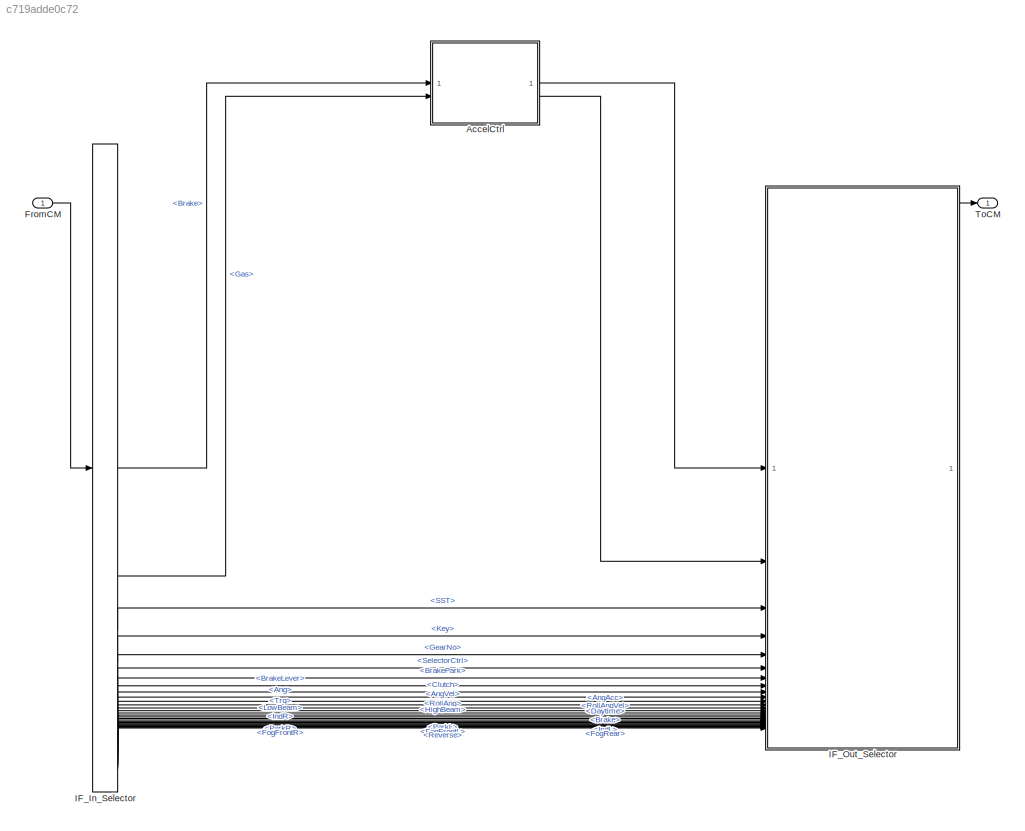
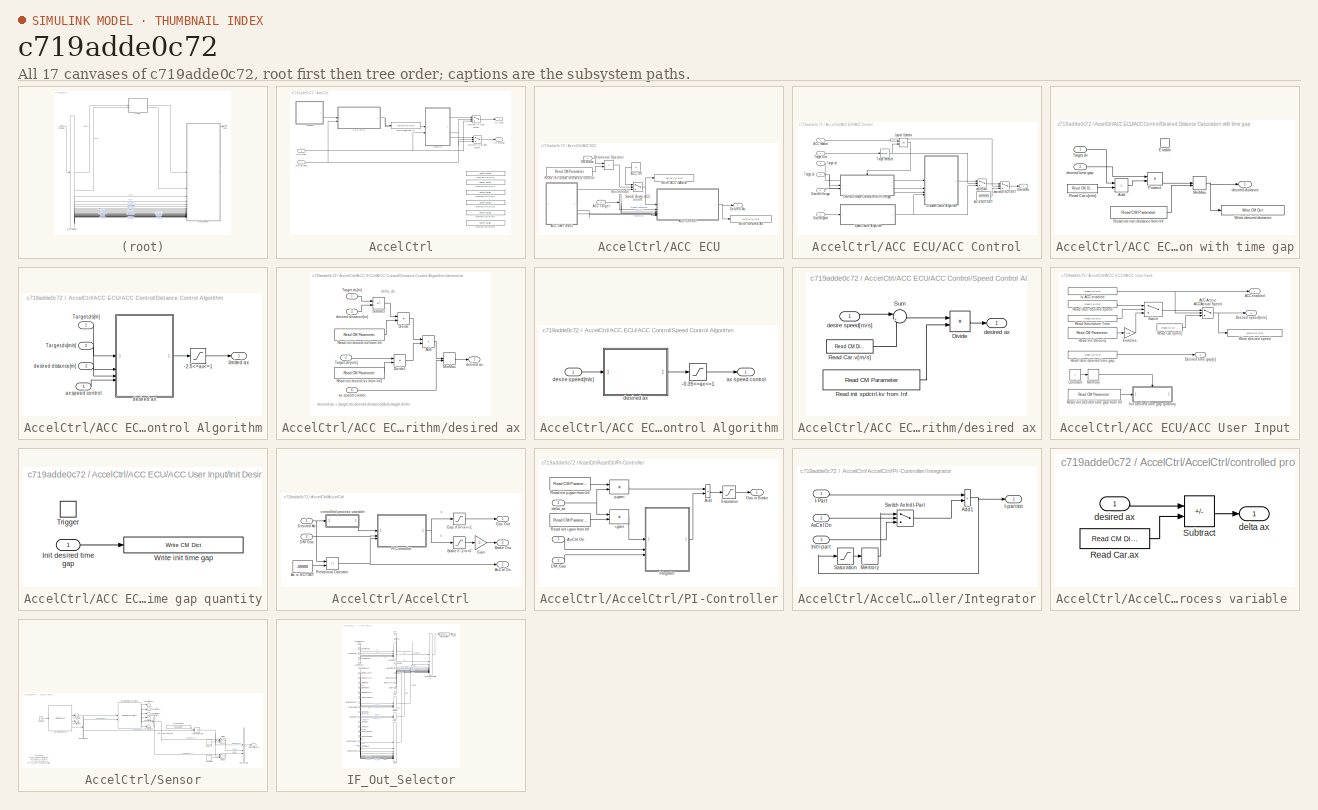
[diagram: thumbnail index - all 17 canvases of the model, root first then tree order]
MODEL slx_c719adde0c72
KIND model
CONFIG AbsTol = auto
CONFIG EnableMultiTasking = off
CONFIG FixedStep = 0.001
CONFIG InitFcn = vehicle = 'Truck'; if ~length(which('cmself')), cmenv; end\nSwitchMobility_ACC_bus
CONFIG MaxStep = auto
CONFIG MinStep = auto
CONFIG PreLoadFcn = vehicle = 'Truck'; if ~length(which('cmself')), cmenv; end\nSwitchMobility_ACC_bus
CONFIG RelTol = 1e-3
CONFIG SampleTimeConstraint = Unconstrained
CONFIG SolverName = ode1
CONFIG StartTime = 0.0
CONFIG StopTime = inf
BLOCK [SubSystem] AccelCtrl
BLOCK [SubSystem] AccelCtrl/ACC ECU
BLOCK [SubSystem] AccelCtrl/ACC ECU/ACC Control
BLOCK [Inport] AccelCtrl/ACC ECU/ACC Control/ACC enabled
BLOCK [Constant] AccelCtrl/ACC ECU/ACC Control/Ax is NOTSET
  Value = -99999
BLOCK [Outport] AccelCtrl/ACC ECU/ACC Control/Desired Ax
  VectorParamsAs1DForOutWhenUnconnected = off
BLOCK [SubSystem] AccelCtrl/ACC ECU/ACC Control/Desired Distance Calculation with time gap
  TreatAsAtomicUnit = on
BLOCK [Sum] AccelCtrl/ACC ECU/ACC Control/Desired Distance Calculation with time gap/Add
  IconShape = rectangular
  OutDataTypeStr = Inherit: Same as first input
  SaturateOnIntegerOverflow = on
BLOCK [EnablePort] AccelCtrl/ACC ECU/ACC Control/Desired Distance Calculation with time gap/Enable
BLOCK [MinMax] AccelCtrl/ACC ECU/ACC Control/Desired Distance Calculation with time gap/MinMax
  Function = max
  InputSameDT = on
  Inputs = 2
  SaturateOnIntegerOverflow = on
BLOCK [Product] AccelCtrl/ACC ECU/ACC Control/Desired Distance Calculation with time gap/Product
  OutDataTypeStr = Inherit: Same as first input
  SaturateOnIntegerOverflow = on
BLOCK [Reference] AccelCtrl/ACC ECU/ACC Control/Desired Distance Calculation with time gap/Read Car.v[m//s]  REF=CarMaker4SL/Read CM Dict
  SourceBlock = CarMaker4SL/Read CM Dict
  SourceProductName = CarMaker4SL
  SourceType = Read CarMaker Dictionary Variable(s)
BLOCK [Reference] AccelCtrl/ACC ECU/ACC Control/Desired Distance Calculation with time gap/Read init min distance from Inf  REF=CarMaker4SL/Read CM Parameter
  SourceBlock = CarMaker4SL/Read CM Parameter
  SourceProductName = CarMaker4SL
  SourceType = Read CarMaker Info File Parameter
BLOCK [Inport] AccelCtrl/ACC ECU/ACC Control/Desired Distance Calculation with time gap/Target.dv
BLOCK [Reference] AccelCtrl/ACC ECU/ACC Control/Desired Distance Calculation with time gap/Write desired distance  REF=CarMaker4SL/Write CM Dict
  SourceBlock = CarMaker4SL/Write CM Dict
  SourceProductName = CarMaker4SL
  SourceType = Write CarMaker Dictionary Variable(s)
BLOCK [Outport] AccelCtrl/ACC ECU/ACC Control/Desired Distance Calculation with time gap/desired distance
  InitialOutput = 0
  VectorParamsAs1DForOutWhenUnconnected = off
BLOCK [Inport] AccelCtrl/ACC ECU/ACC Control/Desired Distance Calculation with time gap/desired time gap
  Port = 2
BLOCK [Inport] AccelCtrl/ACC ECU/ACC Control/Desired speed
  Port = 6
BLOCK [Inport] AccelCtrl/ACC ECU/ACC Control/Desired time gap
  Port = 5
BLOCK [SubSystem] AccelCtrl/ACC ECU/ACC Control/Distance Control Algorithm
  TreatAsAtomicUnit = on
BLOCK [Outport] AccelCtrl/ACC ECU/ACC Control/Distance Control Algorithm/  limited ax
  InitialOutput = 0
  VectorParamsAs1DForOutWhenUnconnected = off
BLOCK [Saturate] AccelCtrl/ACC ECU/ACC Control/Distance Control Algorithm/-2.5<=ax<=1
  LowerLimit = -2.5
  UpperLimit = 1
BLOCK [Inport] AccelCtrl/ACC ECU/ACC Control/Distance Control Algorithm/Target.ds[m]
BLOCK [Inport] AccelCtrl/ACC ECU/ACC Control/Distance Control Algorithm/Target.dv[m//s]
  Port = 2
BLOCK [Inport] AccelCtrl/ACC ECU/ACC Control/Distance Control Algorithm/ax speed control
  Port = 4
BLOCK [SubSystem] AccelCtrl/ACC ECU/ACC Control/Distance Control Algorithm/desired ax
BLOCK [Sum] AccelCtrl/ACC ECU/ACC Control/Distance Control Algorithm/desired ax/Add
  IconShape = rectangular
  OutDataTypeStr = Inherit: Same as first input
  SaturateOnIntegerOverflow = on
BLOCK [Product] AccelCtrl/ACC ECU/ACC Control/Distance Control Algorithm/desired ax/Divide
  Inputs = */
  OutDataTypeStr = Inherit: Same as first input
  SaturateOnIntegerOverflow = on
BLOCK [Product] AccelCtrl/ACC ECU/ACC Control/Distance Control Algorithm/desired ax/Divide1
  Inputs = */
  OutDataTypeStr = Inherit: Same as first input
  SaturateOnIntegerOverflow = on
BLOCK [MinMax] AccelCtrl/ACC ECU/ACC Control/Distance Control Algorithm/desired ax/MinMax
  InputSameDT = on
  Inputs = 2
  SaturateOnIntegerOverflow = on
BLOCK [Reference] AccelCtrl/ACC ECU/ACC Control/Distance Control Algorithm/desired ax/Read init distctrl.kd from Inf  REF=CarMaker4SL/Read CM Parameter
  SourceBlock = CarMaker4SL/Read CM Parameter
  SourceProductName = CarMaker4SL
  SourceType = Read CarMaker Info File Parameter
BLOCK [Reference] AccelCtrl/ACC ECU/ACC Control/Distance Control Algorithm/desired ax/Read init distctrl.kv from Inf1  REF=CarMaker4SL/Read CM Parameter
  SourceBlock = CarMaker4SL/Read CM Parameter
  SourceProductName = CarMaker4SL
  SourceType = Read CarMaker Info File Parameter
BLOCK [Sum] AccelCtrl/ACC ECU/ACC Control/Distance Control Algorithm/desired ax/Subtract
  IconShape = rectangular
  Inputs = +-
  OutDataTypeStr = Inherit: Same as first input
  SaturateOnIntegerOverflow = on
BLOCK [Inport] AccelCtrl/ACC ECU/ACC Control/Distance Control Algorithm/desired ax/Target.ds[m]
BLOCK [Inport] AccelCtrl/ACC ECU/ACC Control/Distance Control Algorithm/desired ax/Target.dv[m//s]
  Port = 2
BLOCK [Inport] AccelCtrl/ACC ECU/ACC Control/Distance Control Algorithm/desired ax/ax speed control
  Port = 4
BLOCK [Outport] AccelCtrl/ACC ECU/ACC Control/Distance Control Algorithm/desired ax/desired ax
  VectorParamsAs1DForOutWhenUnconnected = off
BLOCK [Inport] AccelCtrl/ACC ECU/ACC Control/Distance Control Algorithm/desired ax/desired distance[m]
  Port = 3
BLOCK [Inport] AccelCtrl/ACC ECU/ACC Control/Distance Control Algorithm/desired distance[m]
  Port = 3
BLOCK [Logic] AccelCtrl/ACC ECU/ACC Control/Logical Operator
  AllPortsSameDT = off
BLOCK [SubSystem] AccelCtrl/ACC ECU/ACC Control/Speed Control Algorithm
  TreatAsAtomicUnit = on
BLOCK [Saturate] AccelCtrl/ACC ECU/ACC Control/Speed Control Algorithm/-0.35<=ax<=1
  LowerLimit = -0.35
  UpperLimit = 1
BLOCK [Outport] AccelCtrl/ACC ECU/ACC Control/Speed Control Algorithm/ax speed control
  InitialOutput = 0
  VectorParamsAs1DForOutWhenUnconnected = off
BLOCK [Inport] AccelCtrl/ACC ECU/ACC Control/Speed Control Algorithm/desire speed[m//s]
BLOCK [SubSystem] AccelCtrl/ACC ECU/ACC Control/Speed Control Algorithm/desired ax
BLOCK [Product] AccelCtrl/ACC ECU/ACC Control/Speed Control Algorithm/desired ax/Divide
  Inputs = */
  OutDataTypeStr = Inherit: Same as first input
  SaturateOnIntegerOverflow = on
BLOCK [Reference] AccelCtrl/ACC ECU/ACC Control/Speed Control Algorithm/desired ax/Read Car.v[m//s]  REF=CarMaker4SL/Read CM Dict
  SourceBlock = CarMaker4SL/Read CM Dict
  SourceProductName = CarMaker4SL
  SourceType = Read CarMaker Dictionary Variable(s)
BLOCK [Reference] AccelCtrl/ACC ECU/ACC Control/Speed Control Algorithm/desired ax/Read init spdctrl.kv from Inf  REF=CarMaker4SL/Read CM Parameter
  SourceBlock = CarMaker4SL/Read CM Parameter
  SourceProductName = CarMaker4SL
  SourceType = Read CarMaker Info File Parameter
BLOCK [Sum] AccelCtrl/ACC ECU/ACC Control/Speed Control Algorithm/desired ax/Sum
  Inputs = |+-
  OutDataTypeStr = Inherit: Same as first input
  SaturateOnIntegerOverflow = on
BLOCK [Inport] AccelCtrl/ACC ECU/ACC Control/Speed Control Algorithm/desired ax/desire speed[m//s]
BLOCK [Outport] AccelCtrl/ACC ECU/ACC Control/Speed Control Algorithm/desired ax/desired ax
  VectorParamsAs1DForOutWhenUnconnected = off
BLOCK [Inport] AccelCtrl/ACC ECU/ACC Control/Target Dtct
  Port = 2
BLOCK [Reference] AccelCtrl/ACC ECU/ACC Control/Target detected  REF=simulink/Logic and Bit
Operations/Compare
To Zero
  SourceBlock = simulink/Logic and Bit\nOperations/Compare\nTo Zero
  SourceType = Compare To Zero
BLOCK [Inport] AccelCtrl/ACC ECU/ACC Control/Target.ds
  Port = 3
BLOCK [Inport] AccelCtrl/ACC ECU/ACC Control/Target.dv
  Port = 4
BLOCK [Switch] AccelCtrl/ACC ECU/ACC Control/desired Ax
  InputSameDT = off
  NameLocation = top
  Threshold = 1
BLOCK [Switch] AccelCtrl/ACC ECU/ACC Control/desired or NOTSET
  InputSameDT = off
  NameLocation = top
  Threshold = 1
BLOCK [Constant] AccelCtrl/ACC ECU/ACC Off
  NameLocation = top
  Value = 0
BLOCK [Inport] AccelCtrl/ACC ECU/ACC Target
BLOCK [SubSystem] AccelCtrl/ACC ECU/ACC User Input
BLOCK [Switch] AccelCtrl/ACC ECU/ACC User Input/ACC Active ACC//Actual Speed
  InputSameDT = off
  NameLocation = top
  Threshold = 1
BLOCK [Outport] AccelCtrl/ACC ECU/ACC User Input/ACC enabled
  VectorParamsAs1DForOutWhenUnconnected = off
BLOCK [Constant] AccelCtrl/ACC ECU/ACC User Input/Constant
BLOCK [Outport] AccelCtrl/ACC ECU/ACC User Input/Desired speed[m//s]
  Port = 3
  VectorParamsAs1DForOutWhenUnconnected = off
BLOCK [Outport] AccelCtrl/ACC ECU/ACC User Input/Desired time gap[s]
  Port = 2
  VectorParamsAs1DForOutWhenUnconnected = off
BLOCK [SubSystem] AccelCtrl/ACC ECU/ACC User Input/Init Desired time gap quantity
  TreatAsAtomicUnit = on
BLOCK [Inport] AccelCtrl/ACC ECU/ACC User Input/Init Desired time gap quantity/Init desired time gap 
BLOCK [TriggerPort] AccelCtrl/ACC ECU/ACC User Input/Init Desired time gap quantity/Trigger
  StatesWhenEnabling = held
  VariantControl = Variant
BLOCK [Reference] AccelCtrl/ACC ECU/ACC User Input/Init Desired time gap quantity/Write init time gap  REF=CarMaker4SL/Write CM Dict
  SourceBlock = CarMaker4SL/Write CM Dict
  SourceProductName = CarMaker4SL
  SourceType = Write CarMaker Dictionary Variable(s)
BLOCK [Reference] AccelCtrl/ACC ECU/ACC User Input/Is ACC enabled  REF=CarMaker4SL/Read CM Dict
  SourceBlock = CarMaker4SL/Read CM Dict
  SourceProductName = CarMaker4SL
  SourceType = Read CarMaker Dictionary Variable(s)
BLOCK [Memory] AccelCtrl/ACC ECU/ACC User Input/Memory
BLOCK [Reference] AccelCtrl/ACC ECU/ACC User Input/Read Car.v[m//s]  REF=CarMaker4SL/Read CM Dict
  SourceBlock = CarMaker4SL/Read CM Dict
  SourceProductName = CarMaker4SL
  SourceType = Read CarMaker Dictionary Variable(s)
BLOCK [Reference] AccelCtrl/ACC ECU/ACC User Input/Read Init Velocity  REF=CarMaker4SL/Read CM Parameter
  SourceBlock = CarMaker4SL/Read CM Parameter
  SourceProductName = CarMaker4SL
  SourceType = Read CarMaker Info File Parameter
BLOCK [Reference] AccelCtrl/ACC ECU/ACC User Input/Read Simulation Time  REF=CarMaker4SL/Read CM Dict
  SourceBlock = CarMaker4SL/Read CM Dict
  SourceProductName = CarMaker4SL
  SourceType = Read CarMaker Dictionary Variable(s)
BLOCK [Reference] AccelCtrl/ACC ECU/ACC User Input/Read User desired speed  REF=CarMaker4SL/Read CM Dict
  SourceBlock = CarMaker4SL/Read CM Dict
  SourceProductName = CarMaker4SL
  SourceType = Read CarMaker Dictionary Variable(s)
BLOCK [Reference] AccelCtrl/ACC ECU/ACC User Input/Read User desired time gap  REF=CarMaker4SL/Read CM Dict
  SourceBlock = CarMaker4SL/Read CM Dict
  SourceProductName = CarMaker4SL
  SourceType = Read CarMaker Dictionary Variable(s)
BLOCK [Reference] AccelCtrl/ACC ECU/ACC User Input/Read init desired time gap from Inf  REF=CarMaker4SL/Read CM Parameter
  SourceBlock = CarMaker4SL/Read CM Parameter
  SourceProductName = CarMaker4SL
  SourceType = Read CarMaker Info File Parameter
BLOCK [Switch] AccelCtrl/ACC ECU/ACC User Input/Switch
  Criteria = u2 > Threshold
  InputSameDT = off
  SaturateOnIntegerOverflow = off
BLOCK [Reference] AccelCtrl/ACC ECU/ACC User Input/Write desired speed  REF=CarMaker4SL/Write CM Dict
  SourceBlock = CarMaker4SL/Write CM Dict
  SourceProductName = CarMaker4SL
  SourceType = Write CarMaker Dictionary Variable(s)
BLOCK [Gain] AccelCtrl/ACC ECU/ACC User Input/kmh2ms
  Gain = 0.28
BLOCK [BusSelector] AccelCtrl/ACC ECU/Bus Selector
  OutputSignals = target detected,ds[m],dv[m/s]
BLOCK [Inport] AccelCtrl/ACC ECU/DM Brake
  Port = 2
BLOCK [Outport] AccelCtrl/ACC ECU/Desired Ax
  VectorParamsAs1DForOutWhenUnconnected = off
BLOCK [Reference] AccelCtrl/ACC ECU/Read init brake threshold from Inf  REF=CarMaker4SL/Read CM Parameter
  SourceBlock = CarMaker4SL/Read CM Parameter
  SourceProductName = CarMaker4SL
  SourceType = Read CarMaker Info File Parameter
BLOCK [RelationalOperator] AccelCtrl/ACC ECU/Relational Operator
  InputSameDT = off
  Operator = >
BLOCK [Switch] AccelCtrl/ACC ECU/Switch Brake ACC on//off
  InputSameDT = off
  NameLocation = top
  Threshold = 1
BLOCK [Reference] AccelCtrl/ACC ECU/Write ACC IsActive  REF=CarMaker4SL/Write CM Dict
  SourceBlock = CarMaker4SL/Write CM Dict
  SourceProductName = CarMaker4SL
  SourceType = Write CarMaker Dictionary Variable(s)
BLOCK [Reference] AccelCtrl/ACC ECU/Write desired Ax  REF=CarMaker4SL/Write CM Dict
  SourceBlock = CarMaker4SL/Write CM Dict
  SourceProductName = CarMaker4SL
  SourceType = Write CarMaker Dictionary Variable(s)
BLOCK [SubSystem] AccelCtrl/AccelCtrl
BLOCK [Constant] AccelCtrl/AccelCtrl/Ax is NOTSET
  Value = -99999
BLOCK [Outport] AccelCtrl/AccelCtrl/AxCtrl On
  Port = 2
  VectorParamsAs1DForOutWhenUnconnected = off
BLOCK [Outport] AccelCtrl/AccelCtrl/Brake Out
  Port = 3
  VectorParamsAs1DForOutWhenUnconnected = off
BLOCK [Saturate] AccelCtrl/AccelCtrl/Brake if -1<x<0
  LowerLimit = -1
  UpperLimit = 0
BLOCK [Inport] AccelCtrl/AccelCtrl/DM Gas
  Port = 2
BLOCK [Inport] AccelCtrl/AccelCtrl/Desired Ax
BLOCK [Gain] AccelCtrl/AccelCtrl/Gain
  Gain = -1
  OutDataTypeStr = Inherit: Same as input
  ParamDataTypeStr = Inherit: Same as input
  SaturateOnIntegerOverflow = on
BLOCK [Saturate] AccelCtrl/AccelCtrl/Gas  if 0<=x<=1
  LowerLimit = 0
  UpperLimit = 1
BLOCK [Outport] AccelCtrl/AccelCtrl/Gas Out
  VectorParamsAs1DForOutWhenUnconnected = off
BLOCK [SubSystem] AccelCtrl/AccelCtrl/PI-Controller
BLOCK [Sum] AccelCtrl/AccelCtrl/PI-Controller/Add
  IconShape = rectangular
  OutDataTypeStr = Inherit: Same as first input
  SaturateOnIntegerOverflow = on
BLOCK [Inport] AccelCtrl/AccelCtrl/PI-Controller/AxCtrl On
  Port = 3
BLOCK [Inport] AccelCtrl/AccelCtrl/PI-Controller/DM_Gas
  Port = 2
BLOCK [Outport] AccelCtrl/AccelCtrl/PI-Controller/Gas or Brake
  VectorParamsAs1DForOutWhenUnconnected = off
BLOCK [SubSystem] AccelCtrl/AccelCtrl/PI-Controller/Integrator
BLOCK [Sum] AccelCtrl/AccelCtrl/PI-Controller/Integrator/Add1
  IconShape = rectangular
  OutDataTypeStr = Inherit: Same as first input
  SaturateOnIntegerOverflow = on
BLOCK [Inport] AccelCtrl/AccelCtrl/PI-Controller/Integrator/AxCtrl On
  Port = 2
BLOCK [Inport] AccelCtrl/AccelCtrl/PI-Controller/Integrator/I-Part
BLOCK [Outport] AccelCtrl/AccelCtrl/PI-Controller/Integrator/I-part tot 
  VectorParamsAs1DForOutWhenUnconnected = off
BLOCK [Inport] AccelCtrl/AccelCtrl/PI-Controller/Integrator/Init I-part
  Port = 3
BLOCK [Memory] AccelCtrl/AccelCtrl/PI-Controller/Integrator/Memory
BLOCK [Saturate] AccelCtrl/AccelCtrl/PI-Controller/Integrator/Saturation
  LowerLimit = -1
  UpperLimit = 1
BLOCK [Switch] AccelCtrl/AccelCtrl/PI-Controller/Integrator/Switch Ax Init I-Part
  InputSameDT = off
  NameLocation = top
  Threshold = 1
BLOCK [Reference] AccelCtrl/AccelCtrl/PI-Controller/Read init i-gain from Inf  REF=CarMaker4SL/Read CM Parameter
  SourceBlock = CarMaker4SL/Read CM Parameter
  SourceProductName = CarMaker4SL
  SourceType = Read CarMaker Info File Parameter
BLOCK [Reference] AccelCtrl/AccelCtrl/PI-Controller/Read init p-gain from Inf  REF=CarMaker4SL/Read CM Parameter
  SourceBlock = CarMaker4SL/Read CM Parameter
  SourceProductName = CarMaker4SL
  SourceType = Read CarMaker Info File Parameter
BLOCK [Saturate] AccelCtrl/AccelCtrl/PI-Controller/Saturation
  LowerLimit = -1
  UpperLimit = 1
BLOCK [Inport] AccelCtrl/AccelCtrl/PI-Controller/delta_ax
BLOCK [Product] AccelCtrl/AccelCtrl/PI-Controller/i-gain
  OutDataTypeStr = Inherit: Same as first input
  SaturateOnIntegerOverflow = on
BLOCK [Product] AccelCtrl/AccelCtrl/PI-Controller/p-gain
  OutDataTypeStr = Inherit: Same as first input
  SaturateOnIntegerOverflow = on
BLOCK [RelationalOperator] AccelCtrl/AccelCtrl/Relational Operator
  InputSameDT = off
  Operator = ~=
BLOCK [SubSystem] AccelCtrl/AccelCtrl/controlled process variable 
BLOCK [Reference] AccelCtrl/AccelCtrl/controlled process variable /Read Car.ax  REF=CarMaker4SL/Read CM Dict
  SourceBlock = CarMaker4SL/Read CM Dict
  SourceProductName = CarMaker4SL
  SourceType = Read CarMaker Dictionary Variable(s)
BLOCK [Sum] AccelCtrl/AccelCtrl/controlled process variable /Subtract
  IconShape = rectangular
  Inputs = +-
  SaturateOnIntegerOverflow = on
BLOCK [Outport] AccelCtrl/AccelCtrl/controlled process variable /delta ax
  VectorParamsAs1DForOutWhenUnconnected = off
BLOCK [Inport] AccelCtrl/AccelCtrl/controlled process variable /desired ax
BLOCK [Inport] AccelCtrl/DM Brake
BLOCK [Inport] AccelCtrl/DM Gas
  Port = 2
BLOCK [Reference] AccelCtrl/Define CM Dict  REF=CarMaker4SL/Define CM Dict
  SourceBlock = CarMaker4SL/Define CM Dict
  SourceProductName = CarMaker4SL
  SourceType = Define CarMaker Dictionary Variable
BLOCK [Reference] AccelCtrl/Define CM Dict1  REF=CarMaker4SL/Define CM Dict
  SourceBlock = CarMaker4SL/Define CM Dict
  SourceProductName = CarMaker4SL
  SourceType = Define CarMaker Dictionary Variable
BLOCK [Reference] AccelCtrl/Define CM Dict2  REF=CarMaker4SL/Define CM Dict
  SourceBlock = CarMaker4SL/Define CM Dict
  SourceProductName = CarMaker4SL
  SourceType = Define CarMaker Dictionary Variable
BLOCK [Reference] AccelCtrl/Define CM Dict3  REF=CarMaker4SL/Define CM Dict
  SourceBlock = CarMaker4SL/Define CM Dict
  SourceProductName = CarMaker4SL
  SourceType = Define CarMaker Dictionary Variable
BLOCK [Reference] AccelCtrl/Define CM Dict4  REF=CarMaker4SL/Define CM Dict
  SourceBlock = CarMaker4SL/Define CM Dict
  SourceProductName = CarMaker4SL
  SourceType = Define CarMaker Dictionary Variable
BLOCK [Reference] AccelCtrl/Define CM Dict5  REF=CarMaker4SL/Define CM Dict
  SourceBlock = CarMaker4SL/Define CM Dict
  SourceProductName = CarMaker4SL
  SourceType = Define CarMaker Dictionary Variable
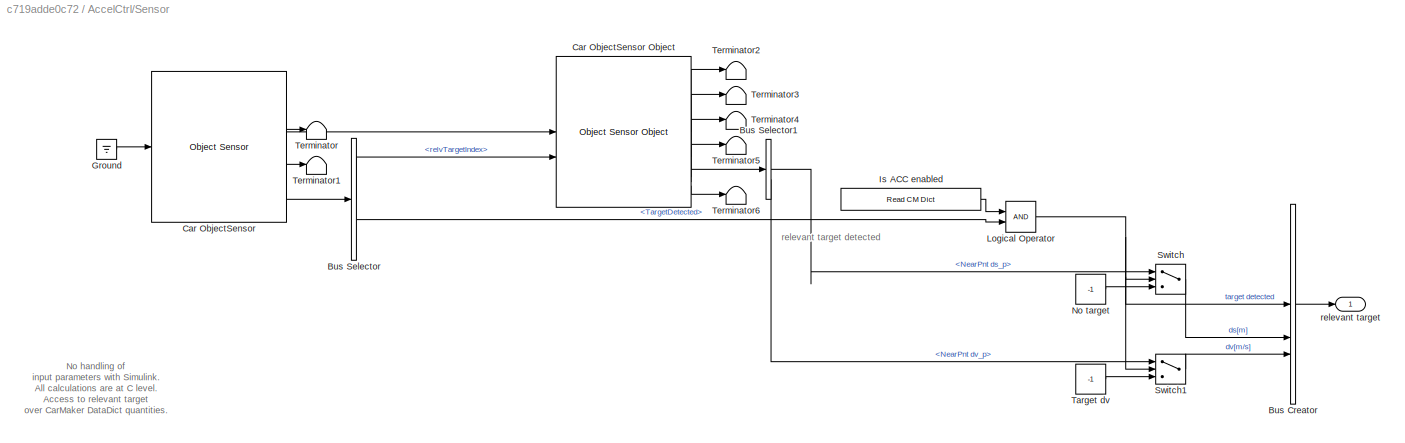
BLOCK [SubSystem] AccelCtrl/Sensor
BLOCK [BusCreator] AccelCtrl/Sensor/Bus Creator
  DisplayOption = bar
  InheritFromInputs = on
  Inputs = 3
BLOCK [BusSelector] AccelCtrl/Sensor/Bus Selector
  OutputSignals = relvTargetIndex,TargetDetected
BLOCK [BusSelector] AccelCtrl/Sensor/Bus Selector1
  OutputSignals = NearPnt ds_p,NearPnt dv_p
BLOCK [Reference] AccelCtrl/Sensor/Car ObjectSensor  REF=CarMaker4SL/Sensors/Object Sensor
  SourceBlock = CarMaker4SL/Sensors/Object Sensor
  SourceProductName = CarMaker4SL
  SourceType = Object Sensor
BLOCK [Reference] AccelCtrl/Sensor/Car ObjectSensor Object  REF=CarMaker4SL/Sensors/Object Sensor Object
  SourceBlock = CarMaker4SL/Sensors/Object Sensor Object
  SourceProductName = CarMaker4SL
  SourceType = Object Sensor Object
BLOCK [Ground] AccelCtrl/Sensor/Ground
BLOCK [Reference] AccelCtrl/Sensor/Is ACC enabled  REF=CarMaker4SL/Read CM Dict
  SourceBlock = CarMaker4SL/Read CM Dict
  SourceProductName = CarMaker4SL
  SourceType = Read CarMaker Dictionary Variable(s)
BLOCK [Logic] AccelCtrl/Sensor/Logical Operator
  AllPortsSameDT = off
BLOCK [Constant] AccelCtrl/Sensor/No target
  Value = -1
BLOCK [Switch] AccelCtrl/Sensor/Switch
  Criteria = u2 > Threshold
  InputSameDT = off
BLOCK [Switch] AccelCtrl/Sensor/Switch1
  Criteria = u2 > Threshold
  InputSameDT = off
BLOCK [Constant] AccelCtrl/Sensor/Target dv
  Value = -1
BLOCK [Terminator] AccelCtrl/Sensor/Terminator
BLOCK [Terminator] AccelCtrl/Sensor/Terminator1
BLOCK [Terminator] AccelCtrl/Sensor/Terminator2
BLOCK [Terminator] AccelCtrl/Sensor/Terminator3
BLOCK [Terminator] AccelCtrl/Sensor/Terminator4
BLOCK [Terminator] AccelCtrl/Sensor/Terminator5
BLOCK [Terminator] AccelCtrl/Sensor/Terminator6
BLOCK [Outport] AccelCtrl/Sensor/relevant target
  VectorParamsAs1DForOutWhenUnconnected = off
BLOCK [Switch] AccelCtrl/Switch Ax Brake on//off
  InputSameDT = off
  NameLocation = top
  Threshold = 1
BLOCK [Switch] AccelCtrl/Switch Ax Gas on//off
  InputSameDT = off
  NameLocation = top
  Threshold = 1
BLOCK [Outport] AccelCtrl/VC Brake
  VectorParamsAs1DForOutWhenUnconnected = off
BLOCK [Outport] AccelCtrl/VC Gas
  Port = 2
  VectorParamsAs1DForOutWhenUnconnected = off
BLOCK [Reference] AccelCtrl/Write desired Ax  REF=CarMaker4SL/Write CM Dict
  SourceBlock = CarMaker4SL/Write CM Dict
  SourceProductName = CarMaker4SL
  SourceType = Write CarMaker Dictionary Variable(s)
BLOCK [Inport] FromCM
  OutDataTypeStr = Bus: cmVehicleControlIn
BLOCK [BusSelector] IF_In_Selector
  OutputSignals = Brake,Gas,SST,Key,GearNo,SelectorCtrl,BrakePark,BrakeLever,Clutch,Steering.Ang,Steering.AngVel,Steering.AngAcc,Steering.Trq,Rider.RollAng,Rider.RollAngVel,Lights.LowBeam,Lights.HighBeam,Lights.Daytime,Lights.ParkL,Lights.ParkR,Lights.IndL,Lights.IndR,Lights.FogFrontL,Lights.FogFrontR,Lights.FogRear,Lights.Brake,Lights.Reverse
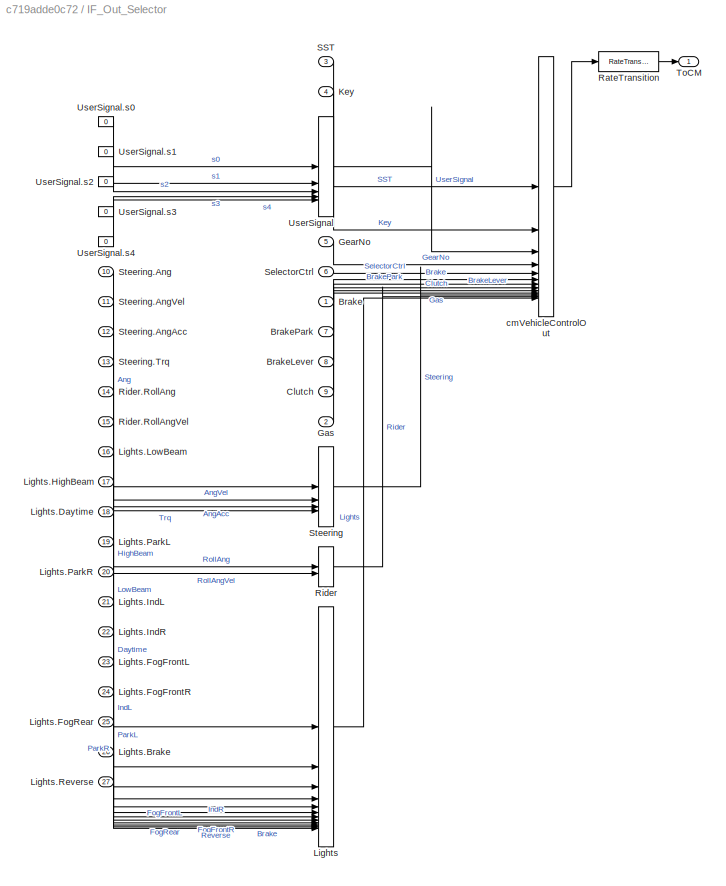
BLOCK [SubSystem] IF_Out_Selector
  OpenFcn = cmSignalSelect('SignalSelection_CB',gcb)
  UserDataPersistent = on
BLOCK [Inport] IF_Out_Selector/Brake
BLOCK [Inport] IF_Out_Selector/BrakeLever
  Port = 8
BLOCK [Inport] IF_Out_Selector/BrakePark
  Port = 7
BLOCK [Inport] IF_Out_Selector/Clutch
  Port = 9
BLOCK [Inport] IF_Out_Selector/Gas
  Port = 2
BLOCK [Inport] IF_Out_Selector/GearNo
  Port = 5
BLOCK [Inport] IF_Out_Selector/Key
  Port = 4
BLOCK [BusCreator] IF_Out_Selector/Lights
  InheritFromInputs = on
  Inputs = 12
BLOCK [Inport] IF_Out_Selector/Lights.Brake
  Port = 26
BLOCK [Inport] IF_Out_Selector/Lights.Daytime
  Port = 18
BLOCK [Inport] IF_Out_Selector/Lights.FogFrontL
  Port = 23
BLOCK [Inport] IF_Out_Selector/Lights.FogFrontR
  Port = 24
BLOCK [Inport] IF_Out_Selector/Lights.FogRear
  Port = 25
BLOCK [Inport] IF_Out_Selector/Lights.HighBeam
  Port = 17
BLOCK [Inport] IF_Out_Selector/Lights.IndL
  Port = 21
BLOCK [Inport] IF_Out_Selector/Lights.IndR
  Port = 22
BLOCK [Inport] IF_Out_Selector/Lights.LowBeam
  Port = 16
BLOCK [Inport] IF_Out_Selector/Lights.ParkL
  Port = 19
BLOCK [Inport] IF_Out_Selector/Lights.ParkR
  Port = 20
BLOCK [Inport] IF_Out_Selector/Lights.Reverse
  Port = 27
BLOCK [RateTransition] IF_Out_Selector/RateTransition
  OutPortSampleTime = str2num(get_param(bdroot,'FixedStep'))
BLOCK [BusCreator] IF_Out_Selector/Rider
  InheritFromInputs = on
  Inputs = 2
BLOCK [Inport] IF_Out_Selector/Rider.RollAng
  Port = 14
BLOCK [Inport] IF_Out_Selector/Rider.RollAngVel
  Port = 15
BLOCK [Inport] IF_Out_Selector/SST
  Port = 3
BLOCK [Inport] IF_Out_Selector/SelectorCtrl
  Port = 6
BLOCK [BusCreator] IF_Out_Selector/Steering
  InheritFromInputs = on
  Inputs = 4
BLOCK [Inport] IF_Out_Selector/Steering.Ang
  Port = 10
BLOCK [Inport] IF_Out_Selector/Steering.AngAcc
  Port = 12
BLOCK [Inport] IF_Out_Selector/Steering.AngVel
  Port = 11
BLOCK [Inport] IF_Out_Selector/Steering.Trq
  Port = 13
BLOCK [Outport] IF_Out_Selector/ToCM
BLOCK [BusCreator] IF_Out_Selector/UserSignal
  InheritFromInputs = on
  Inputs = 5
BLOCK [Constant] IF_Out_Selector/UserSignal.s0
  Value = 0
BLOCK [Constant] IF_Out_Selector/UserSignal.s1
  Value = 0
BLOCK [Constant] IF_Out_Selector/UserSignal.s2
  Value = 0
BLOCK [Constant] IF_Out_Selector/UserSignal.s3
  Value = 0
BLOCK [Constant] IF_Out_Selector/UserSignal.s4
  Value = 0
BLOCK [BusCreator] IF_Out_Selector/cmVehicleControlOut
  InheritFromInputs = on
  Inputs = 13
BLOCK [Outport] ToCM
  OutDataTypeStr = Bus: cmVehicleControlOut
ANNOTATION AccelCtrl/ACC ECU/ACC Control/Distance Control Algorithm/desired ax: delta_ds
ANNOTATION AccelCtrl/ACC ECU/ACC Control/Distance Control Algorithm/desired ax: desired ax = (target.ds-desired.distance)/(kd)+target.dv/kv
ANNOTATION AccelCtrl/AccelCtrl: x
ANNOTATION AccelCtrl/Sensor: No handling of input parameters with Simulink. All calculations are at C level. Access to relevant target over CarMaker DataDict quantities.
ANNOTATION AccelCtrl/Sensor: relevant target detected
NET AccelCtrl/ACC ECU/ACC Control/ACC enabled:1 -> AccelCtrl/ACC ECU/ACC Control/Logical Operator:1, AccelCtrl/ACC ECU/ACC Control/desired or NOTSET:2
LINE AccelCtrl/ACC ECU/ACC Control/Ax is NOTSET:1 -> AccelCtrl/ACC ECU/ACC Control/desired or NOTSET:3
LINE AccelCtrl/ACC ECU/ACC Control/Desired Distance Calculation with time gap/Add:1 -> AccelCtrl/ACC ECU/ACC Control/Desired Distance Calculation with time gap/Product:2
NET AccelCtrl/ACC ECU/ACC Control/Desired Distance Calculation with time gap/MinMax:1 -> AccelCtrl/ACC ECU/ACC Control/Desired Distance Calculation with time gap/Write desired distance:1, AccelCtrl/ACC ECU/ACC Control/Desired Distance Calculation with time gap/desired distance:1
LINE AccelCtrl/ACC ECU/ACC Control/Desired Distance Calculation with time gap/Product:1 -> AccelCtrl/ACC ECU/ACC Control/Desired Distance Calculation with time gap/MinMax:1
LINE AccelCtrl/ACC ECU/ACC Control/Desired Distance Calculation with time gap/Read Car.v[m//s]:1 -> AccelCtrl/ACC ECU/ACC Control/Desired Distance Calculation with time gap/Add:2
LINE AccelCtrl/ACC ECU/ACC Control/Desired Distance Calculation with time gap/Read init min distance from Inf:1 -> AccelCtrl/ACC ECU/ACC Control/Desired Distance Calculation with time gap/MinMax:2
LINE AccelCtrl/ACC ECU/ACC Control/Desired Distance Calculation with time gap/Target.dv:1 -> AccelCtrl/ACC ECU/ACC Control/Desired Distance Calculation with time gap/Add:1
LINE AccelCtrl/ACC ECU/ACC Control/Desired Distance Calculation with time gap/desired time gap:1 -> AccelCtrl/ACC ECU/ACC Control/Desired Distance Calculation with time gap/Product:1
LINE AccelCtrl/ACC ECU/ACC Control/Desired Distance Calculation with time gap:1 -> AccelCtrl/ACC ECU/ACC Control/Distance Control Algorithm:3
LINE AccelCtrl/ACC ECU/ACC Control/Desired speed:1 -> AccelCtrl/ACC ECU/ACC Control/Speed Control Algorithm:1
LINE AccelCtrl/ACC ECU/ACC Control/Desired time gap:1 -> AccelCtrl/ACC ECU/ACC Control/Desired Distance Calculation with time gap:2
LINE AccelCtrl/ACC ECU/ACC Control/Distance Control Algorithm/-2.5<=ax<=1:1 -> AccelCtrl/ACC ECU/ACC Control/Distance Control Algorithm/  limited ax:1
LINE AccelCtrl/ACC ECU/ACC Control/Distance Control Algorithm/Target.ds[m]:1 -> AccelCtrl/ACC ECU/ACC Control/Distance Control Algorithm/desired ax:1
LINE AccelCtrl/ACC ECU/ACC Control/Distance Control Algorithm/Target.dv[m//s]:1 -> AccelCtrl/ACC ECU/ACC Control/Distance Control Algorithm/desired ax:2
LINE AccelCtrl/ACC ECU/ACC Control/Distance Control Algorithm/ax speed control:1 -> AccelCtrl/ACC ECU/ACC Control/Distance Control Algorithm/desired ax:4
LINE AccelCtrl/ACC ECU/ACC Control/Distance Control Algorithm/desired ax/Add:1 -> AccelCtrl/ACC ECU/ACC Control/Distance Control Algorithm/desired ax/MinMax:1
LINE AccelCtrl/ACC ECU/ACC Control/Distance Control Algorithm/desired ax/Divide1:1 -> AccelCtrl/ACC ECU/ACC Control/Distance Control Algorithm/desired ax/Add:2
LINE AccelCtrl/ACC ECU/ACC Control/Distance Control Algorithm/desired ax/Divide:1 -> AccelCtrl/ACC ECU/ACC Control/Distance Control Algorithm/desired ax/Add:1
LINE AccelCtrl/ACC ECU/ACC Control/Distance Control Algorithm/desired ax/MinMax:1 -> AccelCtrl/ACC ECU/ACC Control/Distance Control Algorithm/desired ax/desired ax:1
LINE AccelCtrl/ACC ECU/ACC Control/Distance Control Algorithm/desired ax/Read init distctrl.kd from Inf:1 -> AccelCtrl/ACC ECU/ACC Control/Distance Control Algorithm/desired ax/Divide:2
LINE AccelCtrl/ACC ECU/ACC Control/Distance Control Algorithm/desired ax/Read init distctrl.kv from Inf1:1 -> AccelCtrl/ACC ECU/ACC Control/Distance Control Algorithm/desired ax/Divide1:2
LINE AccelCtrl/ACC ECU/ACC Control/Distance Control Algorithm/desired ax/Subtract:1 -> AccelCtrl/ACC ECU/ACC Control/Distance Control Algorithm/desired ax/Divide:1
LINE AccelCtrl/ACC ECU/ACC Control/Distance Control Algorithm/desired ax/Target.ds[m]:1 -> AccelCtrl/ACC ECU/ACC Control/Distance Control Algorithm/desired ax/Subtract:1
LINE AccelCtrl/ACC ECU/ACC Control/Distance Control Algorithm/desired ax/Target.dv[m//s]:1 -> AccelCtrl/ACC ECU/ACC Control/Distance Control Algorithm/desired ax/Divide1:1
LINE AccelCtrl/ACC ECU/ACC Control/Distance Control Algorithm/desired ax/ax speed control:1 -> AccelCtrl/ACC ECU/ACC Control/Distance Control Algorithm/desired ax/MinMax:2
LINE AccelCtrl/ACC ECU/ACC Control/Distance Control Algorithm/desired ax/desired distance[m]:1 -> AccelCtrl/ACC ECU/ACC Control/Distance Control Algorithm/desired ax/Subtract:2
LINE AccelCtrl/ACC ECU/ACC Control/Distance Control Algorithm/desired ax:1 -> AccelCtrl/ACC ECU/ACC Control/Distance Control Algorithm/-2.5<=ax<=1:1
LINE AccelCtrl/ACC ECU/ACC Control/Distance Control Algorithm/desired distance[m]:1 -> AccelCtrl/ACC ECU/ACC Control/Distance Control Algorithm/desired ax:3
LINE AccelCtrl/ACC ECU/ACC Control/Distance Control Algorithm:1 -> AccelCtrl/ACC ECU/ACC Control/desired Ax:1
LINE AccelCtrl/ACC ECU/ACC Control/Logical Operator:1 -> AccelCtrl/ACC ECU/ACC Control/Desired Distance Calculation with time gap:enable
LINE AccelCtrl/ACC ECU/ACC Control/Speed Control Algorithm/-0.35<=ax<=1:1 -> AccelCtrl/ACC ECU/ACC Control/Speed Control Algorithm/ax speed control:1
LINE AccelCtrl/ACC ECU/ACC Control/Speed Control Algorithm/desire speed[m//s]:1 -> AccelCtrl/ACC ECU/ACC Control/Speed Control Algorithm/desired ax:1
LINE AccelCtrl/ACC ECU/ACC Control/Speed Control Algorithm/desired ax/Divide:1 -> AccelCtrl/ACC ECU/ACC Control/Speed Control Algorithm/desired ax/desired ax:1
LINE AccelCtrl/ACC ECU/ACC Control/Speed Control Algorithm/desired ax/Read Car.v[m//s]:1 -> AccelCtrl/ACC ECU/ACC Control/Speed Control Algorithm/desired ax/Sum:2
LINE AccelCtrl/ACC ECU/ACC Control/Speed Control Algorithm/desired ax/Read init spdctrl.kv from Inf:1 -> AccelCtrl/ACC ECU/ACC Control/Speed Control Algorithm/desired ax/Divide:2
LINE AccelCtrl/ACC ECU/ACC Control/Speed Control Algorithm/desired ax/Sum:1 -> AccelCtrl/ACC ECU/ACC Control/Speed Control Algorithm/desired ax/Divide:1
LINE AccelCtrl/ACC ECU/ACC Control/Speed Control Algorithm/desired ax/desire speed[m//s]:1 -> AccelCtrl/ACC ECU/ACC Control/Speed Control Algorithm/desired ax/Sum:1
LINE AccelCtrl/ACC ECU/ACC Control/Speed Control Algorithm/desired ax:1 -> AccelCtrl/ACC ECU/ACC Control/Speed Control Algorithm/-0.35<=ax<=1:1
NET AccelCtrl/ACC ECU/ACC Control/Speed Control Algorithm:1 -> AccelCtrl/ACC ECU/ACC Control/Distance Control Algorithm:4, AccelCtrl/ACC ECU/ACC Control/desired Ax:3
LINE AccelCtrl/ACC ECU/ACC Control/Target Dtct:1 -> AccelCtrl/ACC ECU/ACC Control/Target detected:1
NET AccelCtrl/ACC ECU/ACC Control/Target detected:1 -> AccelCtrl/ACC ECU/ACC Control/Logical Operator:2, AccelCtrl/ACC ECU/ACC Control/desired Ax:2
LINE AccelCtrl/ACC ECU/ACC Control/Target.ds:1 -> AccelCtrl/ACC ECU/ACC Control/Distance Control Algorithm:1
NET AccelCtrl/ACC ECU/ACC Control/Target.dv:1 -> AccelCtrl/ACC ECU/ACC Control/Desired Distance Calculation with time gap:1, AccelCtrl/ACC ECU/ACC Control/Distance Control Algorithm:2
LINE AccelCtrl/ACC ECU/ACC Control/desired Ax:1 -> AccelCtrl/ACC ECU/ACC Control/desired or NOTSET:1
LINE AccelCtrl/ACC ECU/ACC Control/desired or NOTSET:1 -> AccelCtrl/ACC ECU/ACC Control/Desired Ax:1
NET AccelCtrl/ACC ECU/ACC Control:1 -> AccelCtrl/ACC ECU/Desired Ax:1, AccelCtrl/ACC ECU/Write desired Ax:1
LINE AccelCtrl/ACC ECU/ACC Off:1 -> AccelCtrl/ACC ECU/Switch Brake ACC on//off:1
LINE AccelCtrl/ACC ECU/ACC Target:1 -> AccelCtrl/ACC ECU/Bus Selector:1
NET AccelCtrl/ACC ECU/ACC User Input/ACC Active ACC//Actual Speed:1 -> AccelCtrl/ACC ECU/ACC User Input/Desired speed[m//s]:1, AccelCtrl/ACC ECU/ACC User Input/Write desired speed:1
LINE AccelCtrl/ACC ECU/ACC User Input/Constant:1 -> AccelCtrl/ACC ECU/ACC User Input/Memory:1
LINE AccelCtrl/ACC ECU/ACC User Input/Init Desired time gap quantity/Init desired time gap :1 -> AccelCtrl/ACC ECU/ACC User Input/Init Desired time gap quantity/Write init time gap:1
NET AccelCtrl/ACC ECU/ACC User Input/Is ACC enabled:1 -> AccelCtrl/ACC ECU/ACC User Input/ACC Active ACC//Actual Speed:2, AccelCtrl/ACC ECU/ACC User Input/ACC enabled:1
LINE AccelCtrl/ACC ECU/ACC User Input/Memory:1 -> AccelCtrl/ACC ECU/ACC User Input/Init Desired time gap quantity:trigger
LINE AccelCtrl/ACC ECU/ACC User Input/Read Car.v[m//s]:1 -> AccelCtrl/ACC ECU/ACC User Input/ACC Active ACC//Actual Speed:3
LINE AccelCtrl/ACC ECU/ACC User Input/Read Init Velocity:1 -> AccelCtrl/ACC ECU/ACC User Input/kmh2ms:1
LINE AccelCtrl/ACC ECU/ACC User Input/Read Simulation Time:1 -> AccelCtrl/ACC ECU/ACC User Input/Switch:2
LINE AccelCtrl/ACC ECU/ACC User Input/Read User desired speed:1 -> AccelCtrl/ACC ECU/ACC User Input/Switch:1
LINE AccelCtrl/ACC ECU/ACC User Input/Read User desired time gap:1 -> AccelCtrl/ACC ECU/ACC User Input/Desired time gap[s]:1
LINE AccelCtrl/ACC ECU/ACC User Input/Read init desired time gap from Inf:1 -> AccelCtrl/ACC ECU/ACC User Input/Init Desired time gap quantity:1
LINE AccelCtrl/ACC ECU/ACC User Input/Switch:1 -> AccelCtrl/ACC ECU/ACC User Input/ACC Active ACC//Actual Speed:1
LINE AccelCtrl/ACC ECU/ACC User Input/kmh2ms:1 -> AccelCtrl/ACC ECU/ACC User Input/Switch:3
LINE AccelCtrl/ACC ECU/ACC User Input:1 -> AccelCtrl/ACC ECU/Switch Brake ACC on//off:3
LINE AccelCtrl/ACC ECU/ACC User Input:2 -> AccelCtrl/ACC ECU/ACC Control:5
LINE AccelCtrl/ACC ECU/ACC User Input:3 -> AccelCtrl/ACC ECU/ACC Control:6
LINE AccelCtrl/ACC ECU/Bus Selector:1 -> AccelCtrl/ACC ECU/ACC Control:2
LINE AccelCtrl/ACC ECU/Bus Selector:2 -> AccelCtrl/ACC ECU/ACC Control:3
LINE AccelCtrl/ACC ECU/Bus Selector:3 -> AccelCtrl/ACC ECU/ACC Control:4
LINE AccelCtrl/ACC ECU/DM Brake:1 -> AccelCtrl/ACC ECU/Relational Operator:1
LINE AccelCtrl/ACC ECU/Read init brake threshold from Inf:1 -> AccelCtrl/ACC ECU/Relational Operator:2
LINE AccelCtrl/ACC ECU/Relational Operator:1 -> AccelCtrl/ACC ECU/Switch Brake ACC on//off:2
NET AccelCtrl/ACC ECU/Switch Brake ACC on//off:1 -> AccelCtrl/ACC ECU/ACC Control:1, AccelCtrl/ACC ECU/Write ACC IsActive:1
NET AccelCtrl/ACC ECU:1 -> AccelCtrl/AccelCtrl:1, AccelCtrl/Write desired Ax:1
LINE AccelCtrl/AccelCtrl/Ax is NOTSET:1 -> AccelCtrl/AccelCtrl/Relational Operator:2
LINE AccelCtrl/AccelCtrl/Brake if -1<x<0:1 -> AccelCtrl/AccelCtrl/Gain:1
LINE AccelCtrl/AccelCtrl/DM Gas:1 -> AccelCtrl/AccelCtrl/PI-Controller:2
NET AccelCtrl/AccelCtrl/Desired Ax:1 -> AccelCtrl/AccelCtrl/Relational Operator:1, AccelCtrl/AccelCtrl/controlled process variable :1
LINE AccelCtrl/AccelCtrl/Gain:1 -> AccelCtrl/AccelCtrl/Brake Out:1
LINE AccelCtrl/AccelCtrl/Gas  if 0<=x<=1:1 -> AccelCtrl/AccelCtrl/Gas Out:1
LINE AccelCtrl/AccelCtrl/PI-Controller/Add:1 -> AccelCtrl/AccelCtrl/PI-Controller/Saturation:1
LINE AccelCtrl/AccelCtrl/PI-Controller/AxCtrl On:1 -> AccelCtrl/AccelCtrl/PI-Controller/Integrator:2
LINE AccelCtrl/AccelCtrl/PI-Controller/DM_Gas:1 -> AccelCtrl/AccelCtrl/PI-Controller/Integrator:3
NET AccelCtrl/AccelCtrl/PI-Controller/Integrator/Add1:1 -> AccelCtrl/AccelCtrl/PI-Controller/Integrator/I-part tot :1, AccelCtrl/AccelCtrl/PI-Controller/Integrator/Saturation:1
LINE AccelCtrl/AccelCtrl/PI-Controller/Integrator/AxCtrl On:1 -> AccelCtrl/AccelCtrl/PI-Controller/Integrator/Switch Ax Init I-Part:2
LINE AccelCtrl/AccelCtrl/PI-Controller/Integrator/I-Part:1 -> AccelCtrl/AccelCtrl/PI-Controller/Integrator/Add1:1
LINE AccelCtrl/AccelCtrl/PI-Controller/Integrator/Init I-part:1 -> AccelCtrl/AccelCtrl/PI-Controller/Integrator/Switch Ax Init I-Part:3
LINE AccelCtrl/AccelCtrl/PI-Controller/Integrator/Memory:1 -> AccelCtrl/AccelCtrl/PI-Controller/Integrator/Switch Ax Init I-Part:1
LINE AccelCtrl/AccelCtrl/PI-Controller/Integrator/Saturation:1 -> AccelCtrl/AccelCtrl/PI-Controller/Integrator/Memory:1
LINE AccelCtrl/AccelCtrl/PI-Controller/Integrator/Switch Ax Init I-Part:1 -> AccelCtrl/AccelCtrl/PI-Controller/Integrator/Add1:2
LINE AccelCtrl/AccelCtrl/PI-Controller/Integrator:1 -> AccelCtrl/AccelCtrl/PI-Controller/Add:2
LINE AccelCtrl/AccelCtrl/PI-Controller/Read init i-gain from Inf:1 -> AccelCtrl/AccelCtrl/PI-Controller/i-gain:2
LINE AccelCtrl/AccelCtrl/PI-Controller/Read init p-gain from Inf:1 -> AccelCtrl/AccelCtrl/PI-Controller/p-gain:1
LINE AccelCtrl/AccelCtrl/PI-Controller/Saturation:1 -> AccelCtrl/AccelCtrl/PI-Controller/Gas or Brake:1
NET AccelCtrl/AccelCtrl/PI-Controller/delta_ax:1 -> AccelCtrl/AccelCtrl/PI-Controller/i-gain:1, AccelCtrl/AccelCtrl/PI-Controller/p-gain:2
LINE AccelCtrl/AccelCtrl/PI-Controller/i-gain:1 -> AccelCtrl/AccelCtrl/PI-Controller/Integrator:1
LINE AccelCtrl/AccelCtrl/PI-Controller/p-gain:1 -> AccelCtrl/AccelCtrl/PI-Controller/Add:1
NET AccelCtrl/AccelCtrl/PI-Controller:1 -> AccelCtrl/AccelCtrl/Brake if -1<x<0:1, AccelCtrl/AccelCtrl/Gas  if 0<=x<=1:1
NET AccelCtrl/AccelCtrl/Relational Operator:1 -> AccelCtrl/AccelCtrl/AxCtrl On:1, AccelCtrl/AccelCtrl/PI-Controller:3
LINE AccelCtrl/AccelCtrl/controlled process variable /Read Car.ax:1 -> AccelCtrl/AccelCtrl/controlled process variable /Subtract:2
LINE AccelCtrl/AccelCtrl/controlled process variable /Subtract:1 -> AccelCtrl/AccelCtrl/controlled process variable /delta ax:1
LINE AccelCtrl/AccelCtrl/controlled process variable /desired ax:1 -> AccelCtrl/AccelCtrl/controlled process variable /Subtract:1
LINE AccelCtrl/AccelCtrl/controlled process variable :1 -> AccelCtrl/AccelCtrl/PI-Controller:1
LINE AccelCtrl/AccelCtrl:1 -> AccelCtrl/Switch Ax Gas on//off:1
NET AccelCtrl/AccelCtrl:2 -> AccelCtrl/Switch Ax Brake on//off:2, AccelCtrl/Switch Ax Gas on//off:2
LINE AccelCtrl/AccelCtrl:3 -> AccelCtrl/Switch Ax Brake on//off:1
NET AccelCtrl/DM Brake:1 -> AccelCtrl/ACC ECU:2, AccelCtrl/Switch Ax Brake on//off:3
NET AccelCtrl/DM Gas:1 -> AccelCtrl/AccelCtrl:2, AccelCtrl/Switch Ax Gas on//off:3
LINE AccelCtrl/Sensor/Bus Creator:1 -> AccelCtrl/Sensor/relevant target:1
LINE AccelCtrl/Sensor/Bus Selector1:1 -> AccelCtrl/Sensor/Switch:1
LINE AccelCtrl/Sensor/Bus Selector1:2 -> AccelCtrl/Sensor/Switch1:1
LINE AccelCtrl/Sensor/Bus Selector:1 -> AccelCtrl/Sensor/Car ObjectSensor Object:2
LINE AccelCtrl/Sensor/Bus Selector:2 -> AccelCtrl/Sensor/Logical Operator:2
LINE AccelCtrl/Sensor/Car ObjectSensor Object:1 -> AccelCtrl/Sensor/Terminator2:1
LINE AccelCtrl/Sensor/Car ObjectSensor Object:2 -> AccelCtrl/Sensor/Terminator3:1
LINE AccelCtrl/Sensor/Car ObjectSensor Object:3 -> AccelCtrl/Sensor/Terminator4:1
LINE AccelCtrl/Sensor/Car ObjectSensor Object:4 -> AccelCtrl/Sensor/Terminator5:1
LINE AccelCtrl/Sensor/Car ObjectSensor Object:5 -> AccelCtrl/Sensor/Bus Selector1:1
LINE AccelCtrl/Sensor/Car ObjectSensor Object:6 -> AccelCtrl/Sensor/Terminator6:1
LINE AccelCtrl/Sensor/Car ObjectSensor:1 -> AccelCtrl/Sensor/Car ObjectSensor Object:1
LINE AccelCtrl/Sensor/Car ObjectSensor:2 -> AccelCtrl/Sensor/Terminator:1
LINE AccelCtrl/Sensor/Car ObjectSensor:3 -> AccelCtrl/Sensor/Terminator1:1
LINE AccelCtrl/Sensor/Car ObjectSensor:4 -> AccelCtrl/Sensor/Bus Selector:1
LINE AccelCtrl/Sensor/Ground:1 -> AccelCtrl/Sensor/Car ObjectSensor:1
LINE AccelCtrl/Sensor/Is ACC enabled:1 -> AccelCtrl/Sensor/Logical Operator:1
NET AccelCtrl/Sensor/Logical Operator:1 -> AccelCtrl/Sensor/Bus Creator:1, AccelCtrl/Sensor/Switch1:2, AccelCtrl/Sensor/Switch:2
LINE AccelCtrl/Sensor/No target:1 -> AccelCtrl/Sensor/Switch:3
LINE AccelCtrl/Sensor/Switch1:1 -> AccelCtrl/Sensor/Bus Creator:3
LINE AccelCtrl/Sensor/Switch:1 -> AccelCtrl/Sensor/Bus Creator:2
LINE AccelCtrl/Sensor/Target dv:1 -> AccelCtrl/Sensor/Switch1:3
LINE AccelCtrl/Sensor:1 -> AccelCtrl/ACC ECU:1
LINE AccelCtrl/Switch Ax Brake on//off:1 -> AccelCtrl/VC Brake:1
LINE AccelCtrl/Switch Ax Gas on//off:1 -> AccelCtrl/VC Gas:1
LINE AccelCtrl:1 -> IF_Out_Selector:1
LINE AccelCtrl:2 -> IF_Out_Selector:2
LINE FromCM:1 -> IF_In_Selector:1
LINE IF_In_Selector:1 -> AccelCtrl:1
LINE IF_In_Selector:10 -> IF_Out_Selector:10
LINE IF_In_Selector:11 -> IF_Out_Selector:11
LINE IF_In_Selector:12 -> IF_Out_Selector:12
LINE IF_In_Selector:13 -> IF_Out_Selector:13
LINE IF_In_Selector:14 -> IF_Out_Selector:14
LINE IF_In_Selector:15 -> IF_Out_Selector:15
LINE IF_In_Selector:16 -> IF_Out_Selector:16
LINE IF_In_Selector:17 -> IF_Out_Selector:17
LINE IF_In_Selector:18 -> IF_Out_Selector:18
LINE IF_In_Selector:19 -> IF_Out_Selector:19
LINE IF_In_Selector:2 -> AccelCtrl:2
LINE IF_In_Selector:20 -> IF_Out_Selector:20
LINE IF_In_Selector:21 -> IF_Out_Selector:21
LINE IF_In_Selector:22 -> IF_Out_Selector:22
LINE IF_In_Selector:23 -> IF_Out_Selector:23
LINE IF_In_Selector:24 -> IF_Out_Selector:24
LINE IF_In_Selector:25 -> IF_Out_Selector:25
LINE IF_In_Selector:26 -> IF_Out_Selector:26
LINE IF_In_Selector:27 -> IF_Out_Selector:27
LINE IF_In_Selector:3 -> IF_Out_Selector:3
LINE IF_In_Selector:4 -> IF_Out_Selector:4
LINE IF_In_Selector:5 -> IF_Out_Selector:5
LINE IF_In_Selector:6 -> IF_Out_Selector:6
LINE IF_In_Selector:7 -> IF_Out_Selector:7
LINE IF_In_Selector:8 -> IF_Out_Selector:8
LINE IF_In_Selector:9 -> IF_Out_Selector:9
LINE IF_Out_Selector/Brake:1 -> IF_Out_Selector/cmVehicleControlOut:6
LINE IF_Out_Selector/BrakeLever:1 -> IF_Out_Selector/cmVehicleControlOut:8
LINE IF_Out_Selector/BrakePark:1 -> IF_Out_Selector/cmVehicleControlOut:7
LINE IF_Out_Selector/Clutch:1 -> IF_Out_Selector/cmVehicleControlOut:9
LINE IF_Out_Selector/Gas:1 -> IF_Out_Selector/cmVehicleControlOut:10
LINE IF_Out_Selector/GearNo:1 -> IF_Out_Selector/cmVehicleControlOut:4
LINE IF_Out_Selector/Key:1 -> IF_Out_Selector/cmVehicleControlOut:2
LINE IF_Out_Selector/Lights.Brake:1 -> IF_Out_Selector/Lights:11
LINE IF_Out_Selector/Lights.Daytime:1 -> IF_Out_Selector/Lights:3
LINE IF_Out_Selector/Lights.FogFrontL:1 -> IF_Out_Selector/Lights:8
LINE IF_Out_Selector/Lights.FogFrontR:1 -> IF_Out_Selector/Lights:9
LINE IF_Out_Selector/Lights.FogRear:1 -> IF_Out_Selector/Lights:10
LINE IF_Out_Selector/Lights.HighBeam:1 -> IF_Out_Selector/Lights:2
LINE IF_Out_Selector/Lights.IndL:1 -> IF_Out_Selector/Lights:6
LINE IF_Out_Selector/Lights.IndR:1 -> IF_Out_Selector/Lights:7
LINE IF_Out_Selector/Lights.LowBeam:1 -> IF_Out_Selector/Lights:1
LINE IF_Out_Selector/Lights.ParkL:1 -> IF_Out_Selector/Lights:4
LINE IF_Out_Selector/Lights.ParkR:1 -> IF_Out_Selector/Lights:5
LINE IF_Out_Selector/Lights.Reverse:1 -> IF_Out_Selector/Lights:12
LINE IF_Out_Selector/Lights:1 -> IF_Out_Selector/cmVehicleControlOut:13
LINE IF_Out_Selector/RateTransition:1 -> IF_Out_Selector/ToCM:1
LINE IF_Out_Selector/Rider.RollAng:1 -> IF_Out_Selector/Rider:1
LINE IF_Out_Selector/Rider.RollAngVel:1 -> IF_Out_Selector/Rider:2
LINE IF_Out_Selector/Rider:1 -> IF_Out_Selector/cmVehicleControlOut:12
LINE IF_Out_Selector/SST:1 -> IF_Out_Selector/cmVehicleControlOut:1
LINE IF_Out_Selector/SelectorCtrl:1 -> IF_Out_Selector/cmVehicleControlOut:5
LINE IF_Out_Selector/Steering.Ang:1 -> IF_Out_Selector/Steering:1
LINE IF_Out_Selector/Steering.AngAcc:1 -> IF_Out_Selector/Steering:3
LINE IF_Out_Selector/Steering.AngVel:1 -> IF_Out_Selector/Steering:2
LINE IF_Out_Selector/Steering.Trq:1 -> IF_Out_Selector/Steering:4
LINE IF_Out_Selector/Steering:1 -> IF_Out_Selector/cmVehicleControlOut:11
LINE IF_Out_Selector/UserSignal.s0:1 -> IF_Out_Selector/UserSignal:1
LINE IF_Out_Selector/UserSignal.s1:1 -> IF_Out_Selector/UserSignal:2
LINE IF_Out_Selector/UserSignal.s2:1 -> IF_Out_Selector/UserSignal:3
LINE IF_Out_Selector/UserSignal.s3:1 -> IF_Out_Selector/UserSignal:4
LINE IF_Out_Selector/UserSignal.s4:1 -> IF_Out_Selector/UserSignal:5
LINE IF_Out_Selector/UserSignal:1 -> IF_Out_Selector/cmVehicleControlOut:3
LINE IF_Out_Selector/cmVehicleControlOut:1 -> IF_Out_Selector/RateTransition:1
LINE IF_Out_Selector:1 -> ToCM:1
note: NET lines group one-source signal fan-out (src -> all destinations, sorted); 1:1 wires keep LINE
